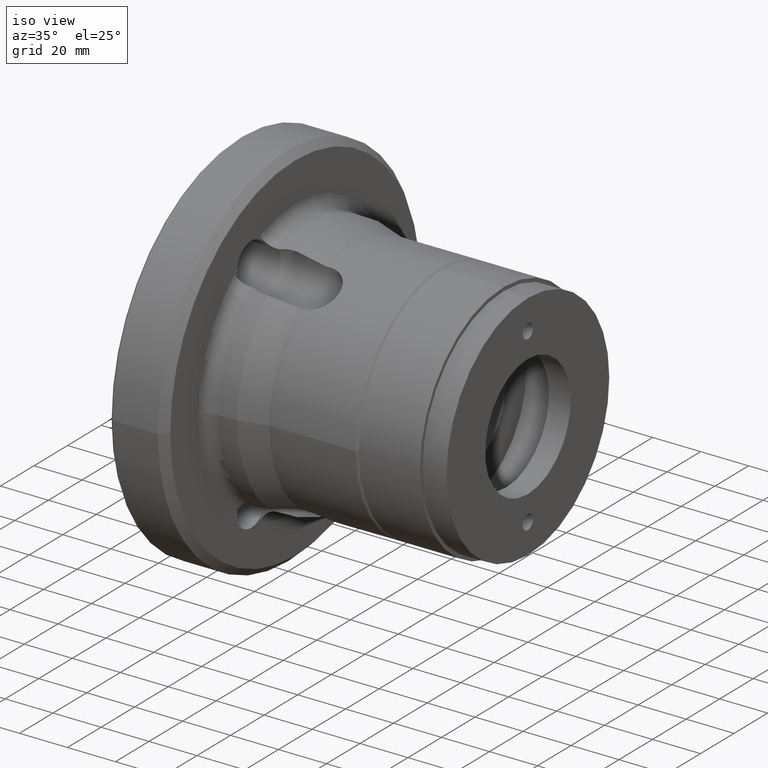
[diagram: clean part render]
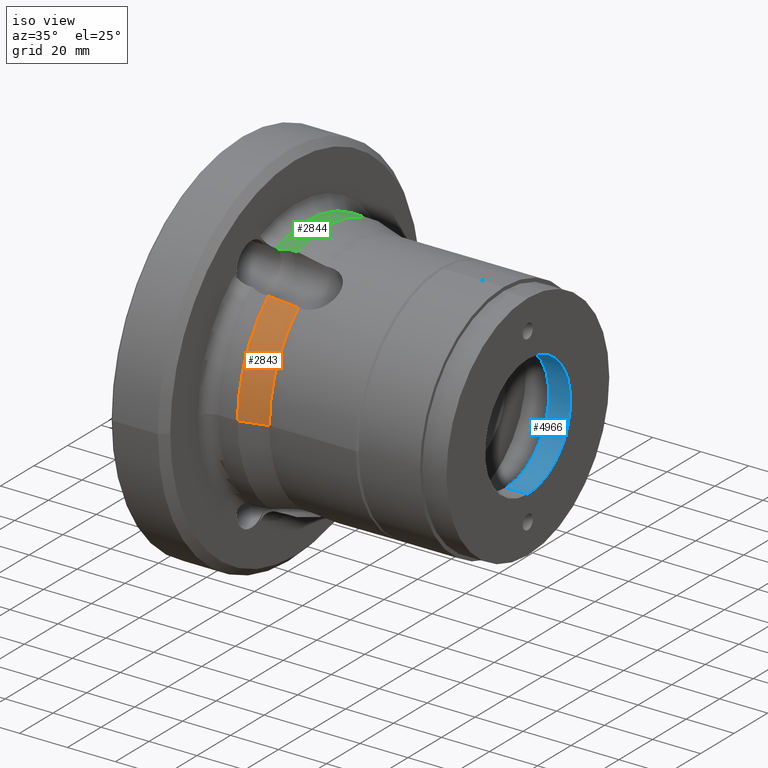
[diagram: same view with three faces highlighted in distinct colors, each labeled with its STEP entity id]
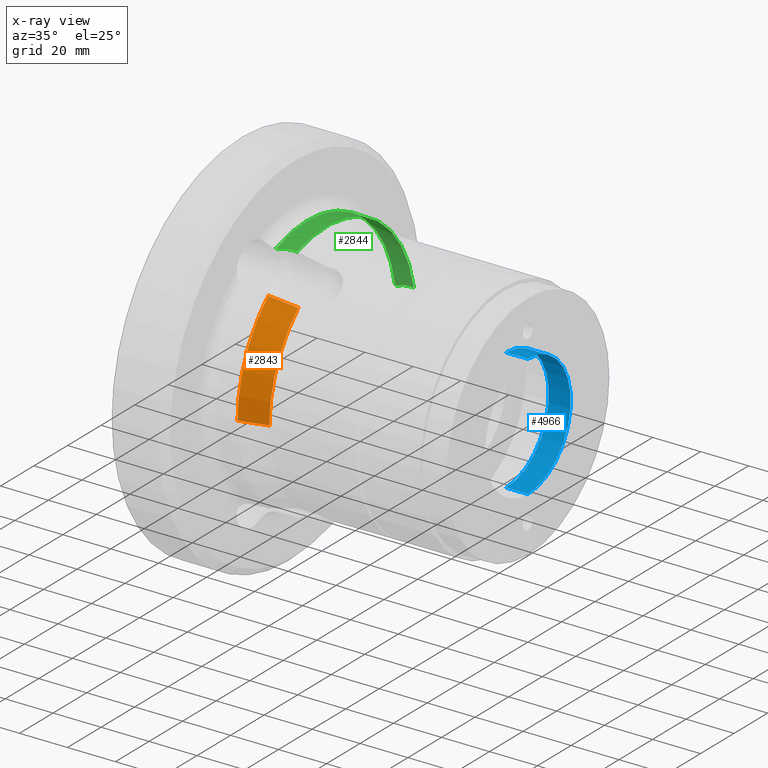
[diagram: x-ray of the same camera — body ghosted, the three highlighted faces saturated]
A machine part, iso view with three faces highlighted in distinct colors.
The next image is the same camera in x-ray (body ghosted, the three faces saturated) — at least one of them is partly hidden behind the body in this view.
Their STEP definitions:

[orange] entity #2843 — the highlighted conical surface has half-angle 15 deg.
#226 = EDGE_LOOP ( 'NONE', ( #1966, #1965, #1964, #1963 ) ) ;
#450 = CONICAL_SURFACE ( 'NONE', #653, 0.05000000000000000300, 0.2617993877991498000 ) ;
#532 = AXIS2_PLACEMENT_3D ( 'NONE', #2599, #2600, #2601 ) ;
#588 = CIRCLE ( 'NONE', #532, 0.05000000000000000300 ) ;
#653 = AXIS2_PLACEMENT_3D ( 'NONE', #3178, #3176, #3172 ) ;
#1019 = CARTESIAN_POINT ( 'NONE',  ( 0.04346393918129114200, -0.03349166674103518800, 0.03846211652283808300 ) ) ;
#1020 = CARTESIAN_POINT ( 'NONE',  ( 0.04719615242270660400, -0.03272572743286785600, 0.03780247034242128400 ) ) ;
#1022 = CARTESIAN_POINT ( 'NONE',  ( 0.03600000000000000400, -3.049025969649249800E-034, 0.0000000000000000000 ) ) ;
#1023 = DIRECTION ( 'NONE',  ( -1.000000000000000000, 8.469516582359026300E-033, -0.0000000000000000000 ) ) ;
#1024 = DIRECTION ( 'NONE',  ( 0.0000000000000000000, -1.000000000000000000, 0.0000000000000000000 ) ) ;
#1028 = CARTESIAN_POINT ( 'NONE',  ( 0.03973189738734116100, -0.03414309626785177300, 0.03922088146228147600 ) ) ;
#1029 = CARTESIAN_POINT ( 'NONE',  ( 0.03600000000000000400, -0.03467954314983982100, 0.04007903799891406700 ) ) ;
#1560 = LINE ( 'NONE', #1563, #4139 ) ;
#1563 = CARTESIAN_POINT ( 'NONE',  ( 0.04719615242270660400, -0.05000000000000000300, 0.0000000000000000000 ) ) ;
#1564 = DIRECTION ( 'NONE',  ( -0.9659258262890682000, -0.2588190451025211300, 0.0000000000000000000 ) ) ;
#1963 = ORIENTED_EDGE ( 'NONE', *, *, #4300, .F. ) ;
#1964 = ORIENTED_EDGE ( 'NONE', *, *, #4302, .T. ) ;
#1965 = ORIENTED_EDGE ( 'NONE', *, *, #3707, .T. ) ;
#1966 = ORIENTED_EDGE ( 'NONE', *, *, #4543, .F. ) ;
#2599 = CARTESIAN_POINT ( 'NONE',  ( 0.04719615242270660400, -3.997285955676576800E-034, 0.0000000000000000000 ) ) ;
#2600 = DIRECTION ( 'NONE',  ( -1.000000000000000000, 8.469516582359026300E-033, -0.0000000000000000000 ) ) ;
#2601 = DIRECTION ( 'NONE',  ( 0.0000000000000000000, -1.000000000000000000, 0.0000000000000000000 ) ) ;
#2843 = ADVANCED_FACE ( 'NONE', ( #3175 ), #450, .T. ) ;
#3003 = VERTEX_POINT ( 'NONE', #3412 ) ;
#3172 = DIRECTION ( 'NONE',  ( 0.0000000000000000000, -1.000000000000000000, 0.0000000000000000000 ) ) ;
#3175 = FACE_OUTER_BOUND ( 'NONE', #226, .T. ) ;
#3176 = DIRECTION ( 'NONE',  ( -1.000000000000000000, 8.469516582359026300E-033, -0.0000000000000000000 ) ) ;
#3178 = CARTESIAN_POINT ( 'NONE',  ( 0.04719615242270660400, -3.997285955676576800E-034, 0.0000000000000000000 ) ) ;
#3412 = CARTESIAN_POINT ( 'NONE',  ( 0.03600000000000000400, -0.03467954314983982100, 0.04007903799891406700 ) ) ;
#3707 = EDGE_CURVE ( 'NONE', #5219, #5449, #588, .T. ) ;
#3820 = CIRCLE ( 'NONE', #4031, 0.05299999999999999900 ) ;
#4031 = AXIS2_PLACEMENT_3D ( 'NONE', #1022, #1023, #1024 ) ;
#4139 = VECTOR ( 'NONE', #1564, 1.000000000000000000 ) ;
#4300 = EDGE_CURVE ( 'NONE', #5167, #3003, #3820, .T. ) ;
#4302 = EDGE_CURVE ( 'NONE', #5449, #3003, #4430, .T. ) ;
#4430 = B_SPLINE_CURVE_WITH_KNOTS ( 'NONE', 3,
 ( #1020, #1019, #1028, #1029 ),
 .UNSPECIFIED., .F., .F.,
 ( 4, 4 ),
 ( 2.070463449113001100E-007, 0.01159132369759791400 ),
 .UNSPECIFIED. ) ;
#4543 = EDGE_CURVE ( 'NONE', #5219, #5167, #1560, .T. ) ;
#5167 = VERTEX_POINT ( 'NONE', #6571 ) ;
#5219 = VERTEX_POINT ( 'NONE', #6581 ) ;
#5449 = VERTEX_POINT ( 'NONE', #6644 ) ;
#6571 = CARTESIAN_POINT ( 'NONE',  ( 0.03600000000000000400, -0.05300000000000000500, 0.0000000000000000000 ) ) ;
#6581 = CARTESIAN_POINT ( 'NONE',  ( 0.04719615242270660400, -0.05000000000000000300, 0.0000000000000000000 ) ) ;
#6644 = CARTESIAN_POINT ( 'NONE',  ( 0.04719615242270660400, -0.03272572743286785600, 0.03780247034242128400 ) ) ;

[blue] entity #4966 — the highlighted cylindrical surface (partial cylindrical patch) has radius 25.5 mm, axis along (-1, -0, -0).
#57 = VERTEX_POINT ( 'NONE', #3043 ) ;
#274 = VERTEX_POINT ( 'NONE', #3113 ) ;
#276 = VERTEX_POINT ( 'NONE', #3110 ) ;
#340 = VERTEX_POINT ( 'NONE', #3141 ) ;
#379 = AXIS2_PLACEMENT_3D ( 'NONE', #6448, #6449, #6450 ) ;
#396 = CIRCLE ( 'NONE', #379, 0.02550000000000000200 ) ;
#973 = EDGE_LOOP ( 'NONE', ( #5282, #5281, #5280, #5279 ) ) ;
#3043 = CARTESIAN_POINT ( 'NONE',  ( 0.03549999999999999700, 3.122849337825751100E-018, -0.02550000000000000200 ) ) ;
#3110 = CARTESIAN_POINT ( 'NONE',  ( 0.02640000000000000300, 3.122849337825750700E-018, -0.02549999999999999800 ) ) ;
#3113 = CARTESIAN_POINT ( 'NONE',  ( 0.02640000000000000300, 0.0000000000000000000, 0.02549999999999999800 ) ) ;
#3141 = CARTESIAN_POINT ( 'NONE',  ( 0.03549999999999999700, 0.0000000000000000000, 0.02550000000000000200 ) ) ;
#3629 = VECTOR ( 'NONE', #6501, 1.000000000000000000 ) ;
#4201 = VECTOR ( 'NONE', #6558, 1.000000000000000000 ) ;
#4203 = AXIS2_PLACEMENT_3D ( 'NONE', #6554, #6555, #6556 ) ;
#4207 = CIRCLE ( 'NONE', #4203, 0.02549999999999999800 ) ;
#4406 = AXIS2_PLACEMENT_3D ( 'NONE', #6249, #6239, #6251 ) ;
#4966 = ADVANCED_FACE ( 'NONE', ( #6248 ), #6250, .F. ) ;
#5012 = EDGE_CURVE ( 'NONE', #340, #57, #396, .T. ) ;
#5025 = EDGE_CURVE ( 'NONE', #57, #276, #6498, .T. ) ;
#5039 = EDGE_CURVE ( 'NONE', #274, #276, #4207, .T. ) ;
#5040 = EDGE_CURVE ( 'NONE', #340, #274, #6553, .T. ) ;
#5279 = ORIENTED_EDGE ( 'NONE', *, *, #5039, .T. ) ;
#5280 = ORIENTED_EDGE ( 'NONE', *, *, #5040, .T. ) ;
#5281 = ORIENTED_EDGE ( 'NONE', *, *, #5012, .F. ) ;
#5282 = ORIENTED_EDGE ( 'NONE', *, *, #5025, .F. ) ;
#6239 = DIRECTION ( 'NONE',  ( -1.000000000000000000, -0.0000000000000000000, -0.0000000000000000000 ) ) ;
#6248 = FACE_OUTER_BOUND ( 'NONE', #973, .T. ) ;
#6249 = CARTESIAN_POINT ( 'NONE',  ( 0.0000000000000000000, 0.0000000000000000000, 0.0000000000000000000 ) ) ;
#6250 = CYLINDRICAL_SURFACE ( 'NONE', #4406, 0.02550000000000000200 ) ;
#6251 = DIRECTION ( 'NONE',  ( 0.0000000000000000000, 0.0000000000000000000, 1.000000000000000000 ) ) ;
#6448 = CARTESIAN_POINT ( 'NONE',  ( 0.03549999999999999700, 0.0000000000000000000, 0.0000000000000000000 ) ) ;
#6449 = DIRECTION ( 'NONE',  ( -1.000000000000000000, -0.0000000000000000000, -0.0000000000000000000 ) ) ;
#6450 = DIRECTION ( 'NONE',  ( 0.0000000000000000000, 0.0000000000000000000, 1.000000000000000000 ) ) ;
#6498 = LINE ( 'NONE', #6500, #3629 ) ;
#6500 = CARTESIAN_POINT ( 'NONE',  ( 0.0000000000000000000, 3.122849337825751100E-018, -0.02550000000000000200 ) ) ;
#6501 = DIRECTION ( 'NONE',  ( -1.000000000000000000, -0.0000000000000000000, -0.0000000000000000000 ) ) ;
#6548 = CARTESIAN_POINT ( 'NONE',  ( 0.0000000000000000000, 0.0000000000000000000, 0.02550000000000000200 ) ) ;
#6553 = LINE ( 'NONE', #6548, #4201 ) ;
#6554 = CARTESIAN_POINT ( 'NONE',  ( 0.02640000000000000300, 0.0000000000000000000, 0.0000000000000000000 ) ) ;
#6555 = DIRECTION ( 'NONE',  ( -1.000000000000000000, -0.0000000000000000000, -0.0000000000000000000 ) ) ;
#6556 = DIRECTION ( 'NONE',  ( 0.0000000000000000000, 0.0000000000000000000, 1.000000000000000000 ) ) ;
#6558 = DIRECTION ( 'NONE',  ( -1.000000000000000000, -0.0000000000000000000, -0.0000000000000000000 ) ) ;

[green] entity #2844 — the highlighted cylindrical surface (partial cylindrical patch) has radius 53 mm, axis along (-1, 0, 0).
#342 = EDGE_LOOP ( 'NONE', ( #1962, #1961, #1960, #1959, #1958, #1957, #1956, #1955 ) ) ;
#442 = CIRCLE ( 'NONE', #537, 0.05299999999999999200 ) ;
#447 = AXIS2_PLACEMENT_3D ( 'NONE', #3180, #3177, #3183 ) ;
#537 = AXIS2_PLACEMENT_3D ( 'NONE', #2749, #2750, #2751 ) ;
#642 = VECTOR ( 'NONE', #2530, 1.000000000000000000 ) ;
#1026 = CARTESIAN_POINT ( 'NONE',  ( 0.02915877081724071300, -0.01855951593976806100, 0.04964417758490410900 ) ) ;
#1027 = CARTESIAN_POINT ( 'NONE',  ( 0.02989969933046204100, -0.01817109130157003000, 0.04978939045003224300 ) ) ;
#1030 = CARTESIAN_POINT ( 'NONE',  ( 0.03500000000000000300, 0.05204923664122136600, 0.009993846359942619800 ) ) ;
#1031 = LINE ( 'NONE', #1030, #3920 ) ;
#1032 = CARTESIAN_POINT ( 'NONE',  ( 0.03067692529861920300, -0.01787660655567997400, 0.04989461314207475200 ) ) ;
#1033 = CARTESIAN_POINT ( 'NONE',  ( 0.03189588245030927600, -0.01757502132688414800, 0.05000129994305686100 ) ) ;
#1034 = CARTESIAN_POINT ( 'NONE',  ( 0.03231351856661441500, -0.01749791595862165400, 0.05002825082773244100 ) ) ;
#1035 = CARTESIAN_POINT ( 'NONE',  ( 0.03315322715399551800, -0.01739545062630611400, 0.05006397148933797200 ) ) ;
#1036 = CARTESIAN_POINT ( 'NONE',  ( 0.03357542882430346300, -0.01736969349138196500, 0.05007288435885675500 ) ) ;
#1037 = CARTESIAN_POINT ( 'NONE',  ( 0.03399999999999999600, -0.01736969349138196800, 0.05007288435885677600 ) ) ;
#1038 = LINE ( 'NONE', #1039, #4058 ) ;
#1039 = CARTESIAN_POINT ( 'NONE',  ( 0.03500000000000000300, -0.01736969349138196800, 0.05007288435885677600 ) ) ;
#1040 = DIRECTION ( 'NONE',  ( 1.000000000000000000, -1.257971659371788900E-032, 7.262902761712187000E-033 ) ) ;
#1042 = CARTESIAN_POINT ( 'NONE',  ( 0.03600000000000000400, -3.049025969649249800E-034, 0.0000000000000000000 ) ) ;
#1043 = DIRECTION ( 'NONE',  ( -1.000000000000000000, 8.469516582359026300E-033, -0.0000000000000000000 ) ) ;
#1044 = DIRECTION ( 'NONE',  ( 0.0000000000000000000, -1.000000000000000000, 0.0000000000000000000 ) ) ;
#1045 = DIRECTION ( 'NONE',  ( -1.000000000000000000, -0.0000000000000000000, -0.0000000000000000000 ) ) ;
#1584 = CARTESIAN_POINT ( 'NONE',  ( 0.02857938540862036200, -0.01855951593976806100, 0.04964417758490410900 ) ) ;
#1604 = LINE ( 'NONE', #1584, #4101 ) ;
#1608 = DIRECTION ( 'NONE',  ( 1.000000000000000000, -1.257971659371788900E-032, 7.262902761712187000E-033 ) ) ;
#1658 = CARTESIAN_POINT ( 'NONE',  ( 0.03232005160948473600, 0.05206985907311180400, 0.009888105374109931700 ) ) ;
#1663 = CARTESIAN_POINT ( 'NONE',  ( 0.03315083066633896900, 0.05204923664122137300, 0.009993846359942623300 ) ) ;
#1666 = CARTESIAN_POINT ( 'NONE',  ( 0.03399999999999999600, 0.05204923664122136600, 0.009993846359942619800 ) ) ;
#1667 = CARTESIAN_POINT ( 'NONE',  ( 0.03110052694859295800, 0.05212787876949107100, 0.009575775056832026800 ) ) ;
#1668 = CARTESIAN_POINT ( 'NONE',  ( 0.03069636694093367400, 0.05215190599930753100, 0.009444770321044572800 ) ) ;
#1669 = CARTESIAN_POINT ( 'NONE',  ( 0.02991089215068859500, 0.05220731450707798100, 0.009133526029794692200 ) ) ;
#1670 = CARTESIAN_POINT ( 'NONE',  ( 0.02952925525629578700, 0.05223864789927266900, 0.008953583665716231500 ) ) ;
#1671 = CARTESIAN_POINT ( 'NONE',  ( 0.02915877081724071300, 0.05227287690839693700, 0.008749076506670935800 ) ) ;
#1955 = ORIENTED_EDGE ( 'NONE', *, *, #4557, .T. ) ;
#1956 = ORIENTED_EDGE ( 'NONE', *, *, #3743, .F. ) ;
#1957 = ORIENTED_EDGE ( 'NONE', *, *, #3691, .T. ) ;
#1958 = ORIENTED_EDGE ( 'NONE', *, *, #4575, .T. ) ;
#1959 = ORIENTED_EDGE ( 'NONE', *, *, #4306, .T. ) ;
#1960 = ORIENTED_EDGE ( 'NONE', *, *, #4305, .T. ) ;
#1961 = ORIENTED_EDGE ( 'NONE', *, *, #4304, .T. ) ;
#1962 = ORIENTED_EDGE ( 'NONE', *, *, #4303, .T. ) ;
#2522 = LINE ( 'NONE', #2529, #642 ) ;
#2529 = CARTESIAN_POINT ( 'NONE',  ( 0.02857938540862036200, 0.05227287690839694400, 0.008749076506670935800 ) ) ;
#2530 = DIRECTION ( 'NONE',  ( -1.000000000000000000, -0.0000000000000000000, -0.0000000000000000000 ) ) ;
#2749 = CARTESIAN_POINT ( 'NONE',  ( 0.02800000000000000400, -2.371464643060527500E-034, 0.0000000000000000000 ) ) ;
#2750 = DIRECTION ( 'NONE',  ( -1.000000000000000000, 8.469516582359026300E-033, -0.0000000000000000000 ) ) ;
#2751 = DIRECTION ( 'NONE',  ( 0.0000000000000000000, -1.000000000000000000, 0.0000000000000000000 ) ) ;
#2840 = VERTEX_POINT ( 'NONE', #3159 ) ;
#2844 = ADVANCED_FACE ( 'NONE', ( #3179 ), #3182, .T. ) ;
#2997 = VERTEX_POINT ( 'NONE', #3417 ) ;
#2999 = VERTEX_POINT ( 'NONE', #3416 ) ;
#3000 = VERTEX_POINT ( 'NONE', #3422 ) ;
#3159 = CARTESIAN_POINT ( 'NONE',  ( 0.02915877081724071300, -0.01855951593976806100, 0.04964417758490410900 ) ) ;
#3177 = DIRECTION ( 'NONE',  ( -1.000000000000000000, 8.469516582359026300E-033, -0.0000000000000000000 ) ) ;
#3179 = FACE_OUTER_BOUND ( 'NONE', #342, .T. ) ;
#3180 = CARTESIAN_POINT ( 'NONE',  ( 0.0000000000000000000, 0.0000000000000000000, 0.0000000000000000000 ) ) ;
#3182 = CYLINDRICAL_SURFACE ( 'NONE', #447, 0.05299999999999999200 ) ;
#3183 = DIRECTION ( 'NONE',  ( -8.469516582359026300E-033, -1.000000000000000000, 0.0000000000000000000 ) ) ;
#3416 = CARTESIAN_POINT ( 'NONE',  ( 0.03600000000000000400, -0.01736969349138196800, 0.05007288435885677600 ) ) ;
#3417 = CARTESIAN_POINT ( 'NONE',  ( 0.03600000000000000400, 0.05204923664122136600, 0.009993846359942628500 ) ) ;
#3422 = CARTESIAN_POINT ( 'NONE',  ( 0.03399999999999999600, -0.01736969349138196800, 0.05007288435885677600 ) ) ;
#3691 = EDGE_CURVE ( 'NONE', #5315, #5488, #2522, .T. ) ;
#3743 = EDGE_CURVE ( 'NONE', #5156, #5488, #442, .T. ) ;
#3902 = AXIS2_PLACEMENT_3D ( 'NONE', #1042, #1043, #1044 ) ;
#3920 = VECTOR ( 'NONE', #1045, 1.000000000000000000 ) ;
#4058 = VECTOR ( 'NONE', #1040, 1.000000000000000000 ) ;
#4092 = CIRCLE ( 'NONE', #3902, 0.05299999999999999900 ) ;
#4101 = VECTOR ( 'NONE', #1608, 1.000000000000000000 ) ;
#4303 = EDGE_CURVE ( 'NONE', #2840, #3000, #4456, .T. ) ;
#4304 = EDGE_CURVE ( 'NONE', #3000, #2999, #1038, .T. ) ;
#4305 = EDGE_CURVE ( 'NONE', #2999, #2997, #4092, .T. ) ;
#4306 = EDGE_CURVE ( 'NONE', #2997, #5479, #1031, .T. ) ;
#4429 = B_SPLINE_CURVE_WITH_KNOTS ( 'NONE', 3,
 ( #1666, #1663, #1658, #1667, #1668, #1669, #1670, #1671 ),
 .UNSPECIFIED., .F., .F.,
 ( 4, 2, 2, 4 ),
 ( 1.971477269399604300E-007, 0.002511378545028775000, 0.003766969243679693800, 0.005022559942330612200 ),
 .UNSPECIFIED. ) ;
#4456 = B_SPLINE_CURVE_WITH_KNOTS ( 'NONE', 3,
 ( #1026, #1027, #1032, #1033, #1034, #1035, #1036, #1037 ),
 .UNSPECIFIED., .F., .F.,
 ( 4, 2, 2, 4 ),
 ( 2.259585644531072200E-007, 0.002511501859492784900, 0.003767139809956933600, 0.005022777760421082800 ),
 .UNSPECIFIED. ) ;
#4557 = EDGE_CURVE ( 'NONE', #5156, #2840, #1604, .T. ) ;
#4575 = EDGE_CURVE ( 'NONE', #5479, #5315, #4429, .T. ) ;
#5156 = VERTEX_POINT ( 'NONE', #6562 ) ;
#5315 = VERTEX_POINT ( 'NONE', #6583 ) ;
#5479 = VERTEX_POINT ( 'NONE', #6652 ) ;
#5488 = VERTEX_POINT ( 'NONE', #6657 ) ;
#6562 = CARTESIAN_POINT ( 'NONE',  ( 0.02800000000000000400, -0.01855951593976806100, 0.04964417758490410900 ) ) ;
#6583 = CARTESIAN_POINT ( 'NONE',  ( 0.02915877081724071300, 0.05227287690839693700, 0.008749076506670935800 ) ) ;
#6652 = CARTESIAN_POINT ( 'NONE',  ( 0.03399999999999999600, 0.05204923664122136600, 0.009993846359942619800 ) ) ;
#6657 = CARTESIAN_POINT ( 'NONE',  ( 0.02800000000000000400, 0.05227287690839693700, 0.008749076506670934100 ) ) ;